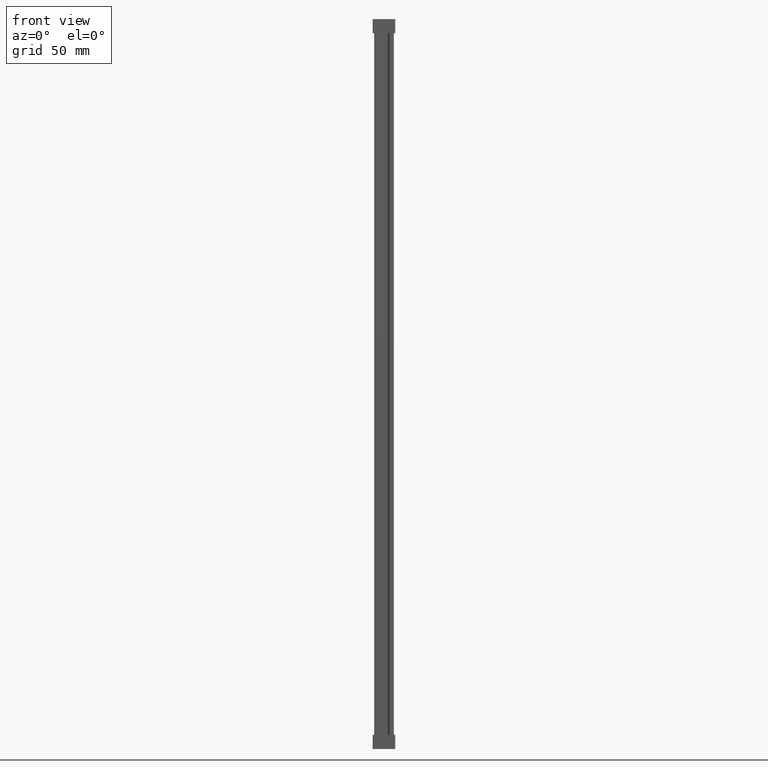
[diagram: clean part render]
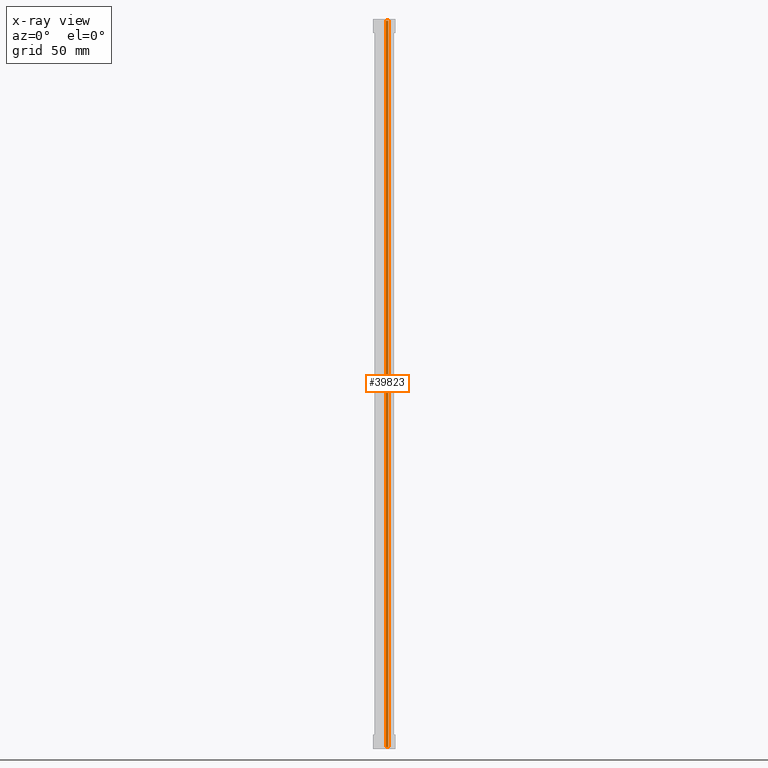
[diagram: x-ray — body ghosted, one internal face saturated and labeled with its STEP entity id]
A machine part, front view, then the same camera in x-ray: the body is ghosted and one INTERNAL B-rep face — a face not visible from any outside direction — is saturated and labeled: STEP entity #39823.
In plain terms, the highlighted planar face has unit normal (0, -1, -0).
Its self-contained STEP definition (entity closure, byte-faithful):
#15808 = EDGE_CURVE ( 'NONE', #36603, #36601, #16804, .T. ) ;
#15885 = EDGE_CURVE ( 'NONE', #36594, #36599, #17279, .T. ) ;
#15923 = EDGE_CURVE ( 'NONE', #36599, #36603, #17650, .T. ) ;
#15970 = EDGE_CURVE ( 'NONE', #36594, #36601, #17885, .T. ) ;
#16804 = LINE ( 'NONE', #16832, #47458 ) ;
#16832 = CARTESIAN_POINT ( 'NONE',  ( 228.6775174961736400, 11.69096289031703000, -313.8000000000000100 ) ) ;
#16840 = DIRECTION ( 'NONE',  ( 1.000000000000000000, 0.0000000000000000000, 0.0000000000000000000 ) ) ;
#17279 = LINE ( 'NONE', #17309, #47569 ) ;
#17309 = CARTESIAN_POINT ( 'NONE',  ( 228.6775174961736400, 11.69096289031696200, 217.8000000000538400 ) ) ;
#17334 = DIRECTION ( 'NONE',  ( -1.000000000000000000, -0.0000000000000000000, -0.0000000000000000000 ) ) ;
#17531 = CARTESIAN_POINT ( 'NONE',  ( 7.950000000000234700, 11.69096289031698900, -1.200000000000000000 ) ) ;
#17552 = DIRECTION ( 'NONE',  ( 0.0000000000000000000, 1.267377881992187900E-016, -1.000000000000000000 ) ) ;
#17650 = LINE ( 'NONE', #17531, #47603 ) ;
#17810 = CARTESIAN_POINT ( 'NONE',  ( 9.620042867501510400, 11.69096289031696400, 217.7999999999999800 ) ) ;
#17885 = LINE ( 'NONE', #17810, #47651 ) ;
#17888 = DIRECTION ( 'NONE',  ( 0.0000000000000000000, 0.0000000000000000000, -1.000000000000000000 ) ) ;
#24679 = AXIS2_PLACEMENT_3D ( 'NONE', #38650, #39189, #39254 ) ;
#31241 = ORIENTED_EDGE ( 'NONE', *, *, #15885, .F. ) ;
#31247 = ORIENTED_EDGE ( 'NONE', *, *, #15923, .F. ) ;
#31317 = ORIENTED_EDGE ( 'NONE', *, *, #15808, .F. ) ;
#31321 = ORIENTED_EDGE ( 'NONE', *, *, #15970, .T. ) ;
#36594 = VERTEX_POINT ( 'NONE', #58794 ) ;
#36599 = VERTEX_POINT ( 'NONE', #58758 ) ;
#36601 = VERTEX_POINT ( 'NONE', #58826 ) ;
#36603 = VERTEX_POINT ( 'NONE', #58863 ) ;
#38602 = FACE_OUTER_BOUND ( 'NONE', #53731, .T. ) ;
#38608 = PLANE ( 'NONE',  #24679 ) ;
#38650 = CARTESIAN_POINT ( 'NONE',  ( 228.6775174961736400, 11.69096289031698900, -1.200000000000000000 ) ) ;
#39189 = DIRECTION ( 'NONE',  ( 0.0000000000000000000, -1.000000000000000000, -1.267377881992187900E-016 ) ) ;
#39254 = DIRECTION ( 'NONE',  ( 0.0000000000000000000, 1.267377881992187900E-016, -1.000000000000000000 ) ) ;
#39823 = ADVANCED_FACE ( 'NONE', ( #38602 ), #38608, .F. ) ;
#47458 = VECTOR ( 'NONE', #16840, 1000.000000000000000 ) ;
#47569 = VECTOR ( 'NONE', #17334, 1000.000000000000000 ) ;
#47603 = VECTOR ( 'NONE', #17552, 1000.000000000000000 ) ;
#47651 = VECTOR ( 'NONE', #17888, 1000.000000000000000 ) ;
#53731 = EDGE_LOOP ( 'NONE', ( #31321, #31317, #31247, #31241 ) ) ;
#58758 = CARTESIAN_POINT ( 'NONE',  ( 7.950000000000234700, 11.69096289031696400, 217.8000000000539300 ) ) ;
#58794 = CARTESIAN_POINT ( 'NONE',  ( 9.620042867501510400, 11.69096289031696400, 217.8000000000538400 ) ) ;
#58826 = CARTESIAN_POINT ( 'NONE',  ( 9.620042867501510400, 11.69096289031698500, -313.8000000000000700 ) ) ;
#58863 = CARTESIAN_POINT ( 'NONE',  ( 7.950000000000234700, 11.69096289031703000, -313.8000000000046200 ) ) ;